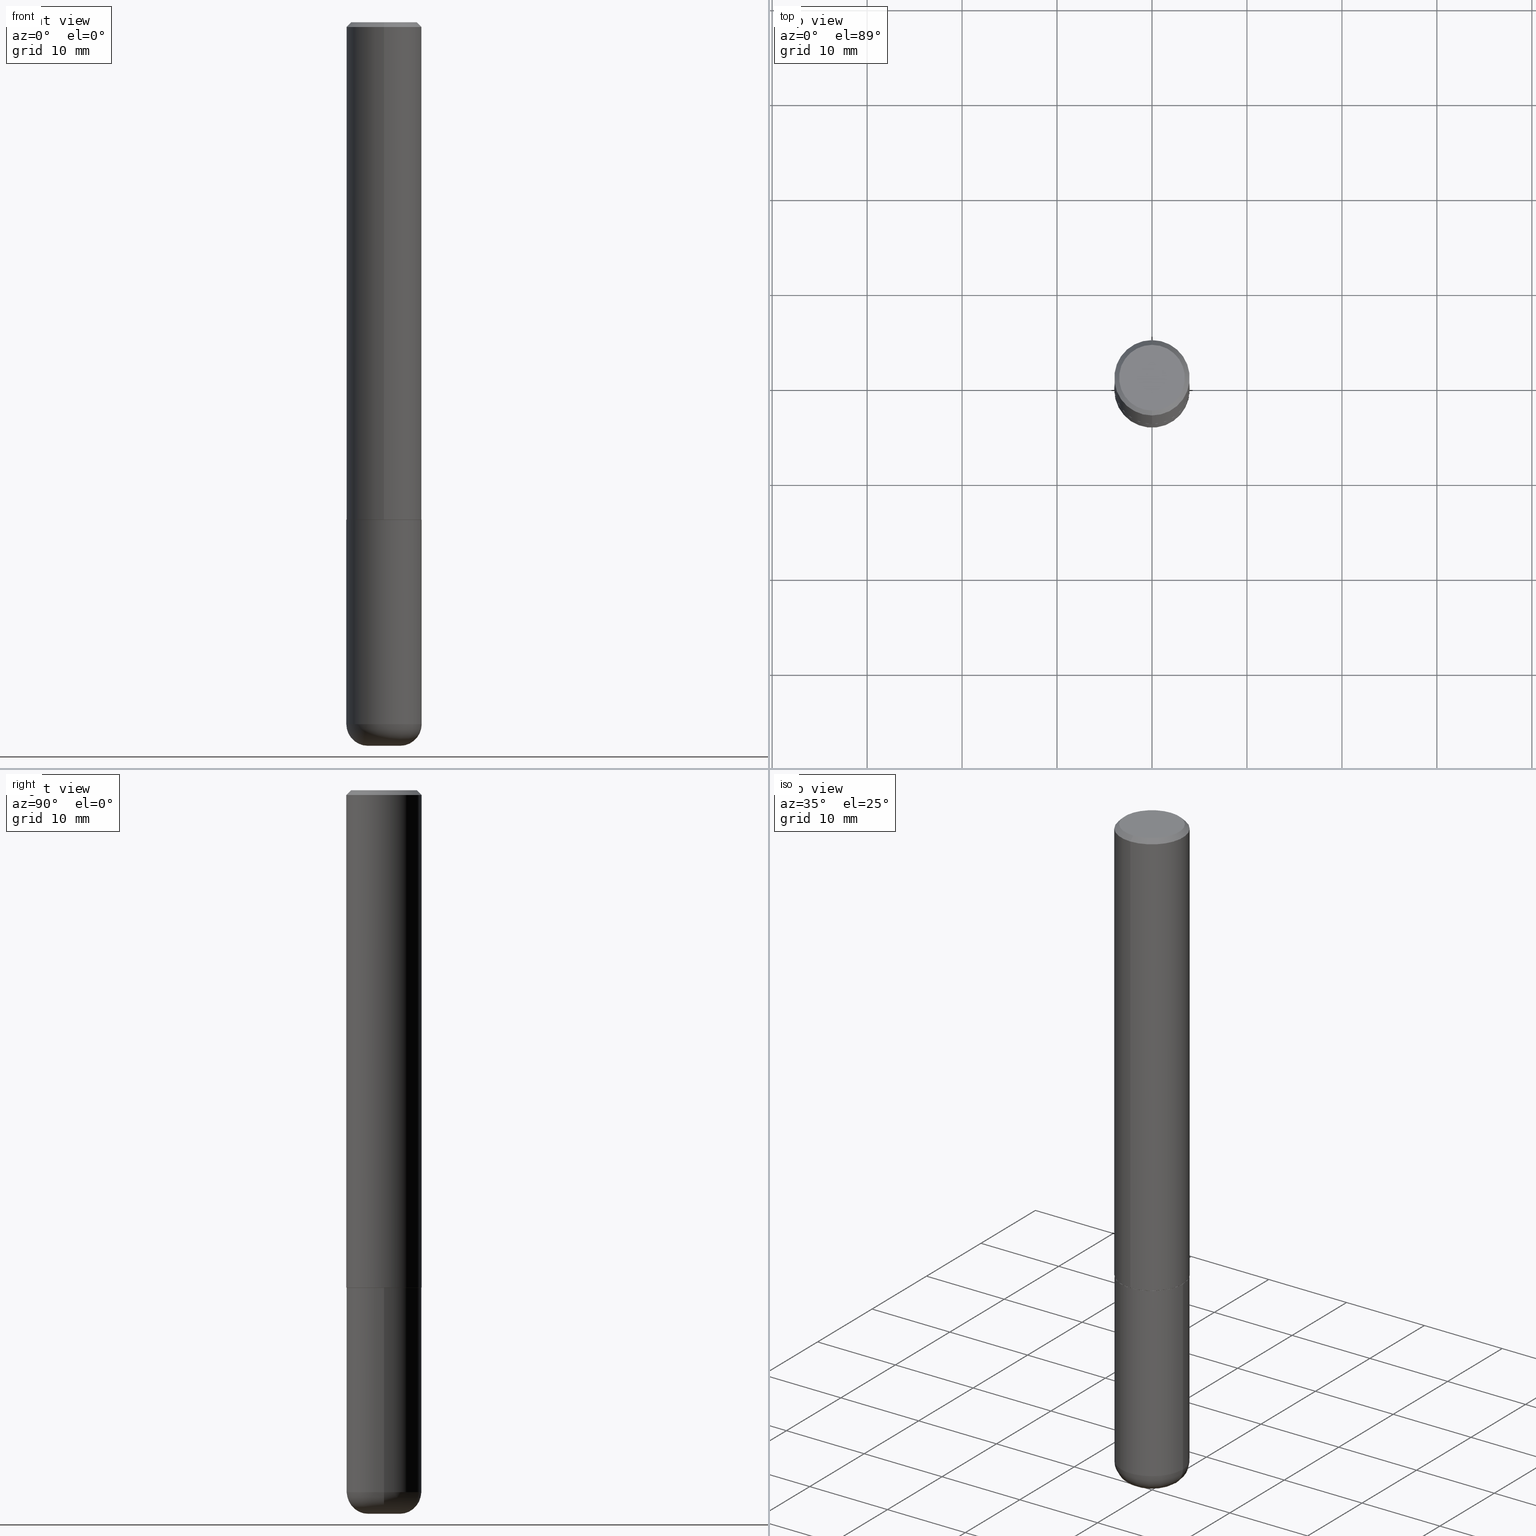
[diagram: canonical four-view strip — front | top / right | iso, engineering-drawing reading convention]
A machine part, canonical four-view strip (front | top / right | iso — engineering-drawing reading convention). The complete STEP part file that produces these views, byte-faithful:
ISO-10303-21;
HEADER;
FILE_DESCRIPTION (( 'STEP AP203' ),
    '1' );
FILE_NAME ('37468.STEP',
    '2024-03-02T02:04:07',
    ( '' ),
    ( '' ),
    'SwSTEP 2.0',
    'SolidWorks 2023',
    '' );
FILE_SCHEMA (( 'CONFIG_CONTROL_DESIGN' ));
ENDSEC;

DATA;
#1 = APPROVAL_STATUS ( 'not_yet_approved' ) ;
#2 = APPROVAL_PERSON_ORGANIZATION ( #260, #373, #105 ) ;
#3 = DATE_AND_TIME ( #283, #248 ) ;
#4 = ADVANCED_FACE ( 'NONE', ( #123 ), #250, .F. ) ;
#5 = DIRECTION ( 'NONE',  ( -2.445176063107630933E-29, 3.491900563592034843E-15, 1.000000000000000000 ) ) ;
#6 = CARTESIAN_POINT ( 'NONE',  ( 1.091087918388479568E-15, 0.1562499999999999445, -0.02000000000000057981 ) ) ;
#7 = ORIENTED_EDGE ( 'NONE', *, *, #19, .T. ) ;
#8 = DIRECTION ( 'NONE',  ( -2.445176063107630933E-29, 3.491900563592034843E-15, 1.000000000000000000 ) ) ;
#9 = CALENDAR_DATE ( 2024, 1, 3 ) ;
#10 = APPLICATION_CONTEXT ( 'configuration controlled 3d designs of mechanical parts and assemblies' ) ;
#11 = EDGE_CURVE ( 'NONE', #413, #173, #190, .T. ) ;
#12 = CONICAL_SURFACE ( 'NONE', #114, 0.1562500000000000000, 0.7853981633974469467 ) ;
#13 = DIRECTION ( 'NONE',  ( 2.445176063107630653E-29, -3.491900563592034843E-15, -1.000000000000000000 ) ) ;
#14 = CC_DESIGN_APPROVAL ( #373, ( #188 ) ) ;
#15 = CYLINDRICAL_SURFACE ( 'NONE', #308, 0.1562500000000001388 ) ;
#16 = DIRECTION ( 'NONE',  ( 1.000000000000000000, -6.982962677686269077E-15, 0.000000000000000000 ) ) ;
#17 = LINE ( 'NONE', #365, #217 ) ;
#18 = DIRECTION ( 'NONE',  ( 7.105427357601001859E-15, 1.000000000000000000, -3.491481338843145583E-15 ) ) ;
#19 = EDGE_CURVE ( 'NONE', #175, #277, #194, .T. ) ;
#20 = CARTESIAN_POINT ( 'NONE',  ( -1.071952812151801215E-15, -0.1562500000000000833, -0.01999999999999948694 ) ) ;
#21 = CARTESIAN_POINT ( 'NONE',  ( -0.06625000000000001721, -9.526848562748384337E-15, -2.999999999999999556 ) ) ;
#22 = CIRCLE ( 'NONE', #329, 0.1552499999999999991 ) ;
#23 = AXIS2_PLACEMENT_3D ( 'NONE', #251, #379, #53 ) ;
#24 = LENGTH_MEASURE_WITH_UNIT ( LENGTH_MEASURE( 0.02539999999999999897 ), #319 );
#25 = CONICAL_SURFACE ( 'NONE', #127, 0.1552499999999999991, 0.7853981633974141952 ) ;
#26 = CIRCLE ( 'NONE', #346, 0.1552499999999999991 ) ;
#27 = DIRECTION ( 'NONE',  ( -2.445176063107631214E-29, 3.491900563592034843E-15, 1.000000000000000000 ) ) ;
#28 = PERSON_AND_ORGANIZATION ( #135, #86 ) ;
#29 = PLANE ( 'NONE',  #330 ) ;
#30 = CARTESIAN_POINT ( 'NONE',  ( 5.043175630159489045E-29, -7.202044912408573467E-15, -2.062500000000000000 ) ) ;
#31 = CARTESIAN_POINT ( 'NONE',  ( 5.043175630159490166E-29, -7.202044912408575044E-15, -2.062500000000000444 ) ) ;
#32 = DIRECTION ( 'NONE',  ( -6.982962677686265922E-15, -1.000000000000000000, 3.491900563592035238E-15 ) ) ;
#33 = DIRECTION ( 'NONE',  ( -2.445176063107630933E-29, 3.491900563592034843E-15, 1.000000000000000000 ) ) ;
#34 = AXIS2_PLACEMENT_3D ( 'NONE', #254, #261, #355 ) ;
#35 = CIRCLE ( 'NONE', #204, 0.08999999999999964972 ) ;
#36 = DATE_AND_TIME ( #159, #94 ) ;
#37 = DIRECTION ( 'NONE',  ( -2.445468806185136597E-29, 3.491481338843145583E-15, 1.000000000000000000 ) ) ;
#38 = DIRECTION ( 'NONE',  ( -1.000000000000000000, 6.982962677686265922E-15, -4.876176775795935793E-29 ) ) ;
#39 = APPROVAL_DATE_TIME ( #316, #293 ) ;
#40 = CC_DESIGN_DATE_AND_TIME_ASSIGNMENT ( #3, #258, ( #237 ) ) ;
#41 = EDGE_CURVE ( 'NONE', #175, #366, #265, .T. ) ;
#42 = PERSON_AND_ORGANIZATION ( #135, #86 ) ;
#43 = CIRCLE ( 'NONE', #73, 0.1562500000000002776 ) ;
#44 = FACE_OUTER_BOUND ( 'NONE', #353, .T. ) ;
#45 = PERSON_AND_ORGANIZATION_ROLE ( 'creator' ) ;
#46 = CARTESIAN_POINT ( 'NONE',  ( 1.091087918388479568E-15, 0.1562499999999999445, -0.02000000000000057981 ) ) ;
#47 = ORIENTED_EDGE ( 'NONE', *, *, #63, .T. ) ;
#48 = PERSON_AND_ORGANIZATION ( #135, #86 ) ;
#49 = ORIENTED_EDGE ( 'NONE', *, *, #297, .T. ) ;
#50 = AXIS2_PLACEMENT_3D ( 'NONE', #212, #321, #361 ) ;
#51 = CARTESIAN_POINT ( 'NONE',  ( 0.1562499999999998335, -1.125129861442203147E-14, -2.910000000000000586 ) ) ;
#52 = VECTOR ( 'NONE', #27, 39.37007874015748143 ) ;
#53 = DIRECTION ( 'NONE',  ( -6.982962677686265922E-15, -1.000000000000000000, 3.519288880726909138E-15 ) ) ;
#54 = ORIENTED_EDGE ( 'NONE', *, *, #11, .F. ) ;
#55 = CARTESIAN_POINT ( 'NONE',  ( 5.043779412756844791E-29, -7.201180261363988578E-15, -2.062500000000000000 ) ) ;
#56 = ORIENTED_EDGE ( 'NONE', *, *, #255, .F. ) ;
#57 = MECHANICAL_CONTEXT ( 'NONE', #10, 'mechanical' ) ;
#58 = EDGE_CURVE ( 'NONE', #413, #274, #299, .T. ) ;
#59 = DIRECTION ( 'NONE',  ( -1.000000000000000000, 7.105427357600996337E-15, 0.000000000000000000 ) ) ;
#60 = LINE ( 'NONE', #268, #128 ) ;
#61 = ORIENTED_EDGE ( 'NONE', *, *, #58, .F. ) ;
#62 = DIRECTION ( 'NONE',  ( 2.445176063107630933E-29, -3.491900563592034843E-15, -1.000000000000000000 ) ) ;
#63 = EDGE_CURVE ( 'NONE', #366, #106, #17, .T. ) ;
#64 = ORIENTED_EDGE ( 'NONE', *, *, #138, .F. ) ;
#65 = ORIENTED_EDGE ( 'NONE', *, *, #63, .F. ) ;
#66 = DIRECTION ( 'NONE',  ( 2.438088387897960049E-29, -3.491481338843145188E-15, -1.000000000000000000 ) ) ;
#67 = AXIS2_PLACEMENT_3D ( 'NONE', #80, #200, #393 ) ;
#68 = AXIS2_PLACEMENT_3D ( 'NONE', #55, #171, #16 ) ;
#69 = APPLICATION_CONTEXT ( 'configuration controlled 3d designs of mechanical parts and assemblies' ) ;
#70 = COORDINATED_UNIVERSAL_TIME_OFFSET ( 5, 0, .BEHIND. ) ;
#71 = ADVANCED_FACE ( 'NONE', ( #300 ), #211, .T. ) ;
#72 = CARTESIAN_POINT ( 'NONE',  ( 1.110223024625157329E-15, 0.1562500000000001388, -5.456094630612559989E-16 ) ) ;
#73 = AXIS2_PLACEMENT_3D ( 'NONE', #192, #8, #234 ) ;
#74 = CC_DESIGN_PERSON_AND_ORGANIZATION_ASSIGNMENT ( #42, #231, ( #237 ) ) ;
#75 = DIRECTION ( 'NONE',  ( -4.937700262164378437E-15, -0.7071067811865208164, 0.7071067811865739960 ) ) ;
#76 = DIRECTION ( 'NONE',  ( -6.982962677686265922E-15, -1.000000000000000000, 3.519288880726909138E-15 ) ) ;
#77 = CIRCLE ( 'NONE', #67, 0.1562500000000000000 ) ;
#78 = AXIS2_PLACEMENT_3D ( 'NONE', #205, #13, #142 ) ;
#79 = EDGE_CURVE ( 'NONE', #274, #246, #77, .T. ) ;
#80 = CARTESIAN_POINT ( 'NONE',  ( 4.890352126215269679E-31, -6.983801127184080238E-17, -0.02000000000000003511 ) ) ;
#81 = DIRECTION ( 'NONE',  ( -6.982962677686265922E-15, -1.000000000000000000, 3.519288880726909138E-15 ) ) ;
#82 = DIRECTION ( 'NONE',  ( 1.000000000000000000, -6.982962677686262766E-15, 0.000000000000000000 ) ) ;
#83 = CARTESIAN_POINT ( 'NONE',  ( 5.043779412756844791E-29, -7.201180261363988578E-15, -2.062500000000000000 ) ) ;
#84 = DESIGN_CONTEXT ( 'detailed design', #69, 'design' ) ;
#85 = VECTOR ( 'NONE', #75, 39.37007874015748854 ) ;
#86 = ORGANIZATION ( 'UNSPECIFIED', 'UNSPECIFIED', '' ) ;
#87 = CARTESIAN_POINT ( 'NONE',  ( 1.021258291611617059E-15, 0.1362500000000001210, -5.653530947094876156E-16 ) ) ;
#88 = DIRECTION ( 'NONE',  ( -2.445468806185136597E-29, 3.491481338843145583E-15, 1.000000000000000000 ) ) ;
#89 = DIMENSIONAL_EXPONENTS ( 1.000000000000000000, 0.000000000000000000, 0.000000000000000000, 0.000000000000000000, 0.000000000000000000, 0.000000000000000000, 0.000000000000000000 ) ;
#90 = VERTEX_POINT ( 'NONE', #122 ) ;
#91 = DIRECTION ( 'NONE',  ( -6.982962677686265133E-15, -1.000000000000000000, 3.496765431890256920E-15 ) ) ;
#92 = VERTEX_POINT ( 'NONE', #403 ) ;
#93 = AXIS2_PLACEMENT_3D ( 'NONE', #418, #352, #405 ) ;
#94 = LOCAL_TIME ( 21, 4, 7.000000000000000000, #70 ) ;
#95 = EDGE_LOOP ( 'NONE', ( #257, #183 ) ) ;
#96 = ORIENTED_EDGE ( 'NONE', *, *, #41, .F. ) ;
#97 = FACE_OUTER_BOUND ( 'NONE', #152, .T. ) ;
#98 = DIRECTION ( 'NONE',  ( 6.982962677686265133E-15, 1.000000000000000000, -3.496765431890256920E-15 ) ) ;
#99 = CONICAL_SURFACE ( 'NONE', #132, 0.1562500000000000000, 0.7853981633974469467 ) ;
#100 = CONICAL_SURFACE ( 'NONE', #23, 0.1552499999999999991, 0.7853981633974141952 ) ;
#101 = EDGE_LOOP ( 'NONE', ( #347, #227, #117, #201 ) ) ;
#102 = DIRECTION ( 'NONE',  ( -2.445176063107630933E-29, 3.491900563592034843E-15, 1.000000000000000000 ) ) ;
#103 = CARTESIAN_POINT ( 'NONE',  ( 5.040730454096381281E-29, -7.198553011844980434E-15, -2.061500000000000110 ) ) ;
#104 = CIRCLE ( 'NONE', #218, 0.1362500000000001210 ) ;
#105 = APPROVAL_ROLE ( '' ) ;
#106 = VERTEX_POINT ( 'NONE', #146 ) ;
#107 = CARTESIAN_POINT ( 'NONE',  ( 1.103117597267605822E-15, 0.1552499999999928104, -2.062500000000000888 ) ) ;
#108 = APPROVAL_STATUS ( 'not_yet_approved' ) ;
#109 = PRODUCT_DEFINITION ( 'UNKNOWN', '', #188, #84 ) ;
#110 = DATE_AND_TIME ( #264, #380 ) ;
#111 = PERSON_AND_ORGANIZATION ( #135, #86 ) ;
#112 = CC_DESIGN_DATE_AND_TIME_ASSIGNMENT ( #143, #136, ( #109 ) ) ;
#113 = ADVANCED_FACE ( 'NONE', ( #97 ), #15, .T. ) ;
#114 = AXIS2_PLACEMENT_3D ( 'NONE', #253, #62, #184 ) ;
#115 = AXIS2_PLACEMENT_3D ( 'NONE', #103, #189, #312 ) ;
#116 = FACE_OUTER_BOUND ( 'NONE', #118, .T. ) ;
#117 = ORIENTED_EDGE ( 'NONE', *, *, #168, .F. ) ;
#118 = EDGE_LOOP ( 'NONE', ( #170, #302, #47, #154 ) ) ;
#119 = CARTESIAN_POINT ( 'NONE',  ( 4.890352126215269679E-31, -6.983801127184080238E-17, -0.02000000000000003511 ) ) ;
#120 = VECTOR ( 'NONE', #241, 39.37007874015748143 ) ;
#121 = AXIS2_PLACEMENT_3D ( 'NONE', #383, #66, #38 ) ;
#122 = CARTESIAN_POINT ( 'NONE',  ( -0.1562499999999998335, -9.049987671408398127E-15, -2.910000000000000586 ) ) ;
#123 = FACE_OUTER_BOUND ( 'NONE', #95, .T. ) ;
#124 = FACE_OUTER_BOUND ( 'NONE', #348, .T. ) ;
#125 = ADVANCED_FACE ( 'NONE', ( #315 ), #12, .T. ) ;
#126 = FACE_OUTER_BOUND ( 'NONE', #386, .T. ) ;
#127 = AXIS2_PLACEMENT_3D ( 'NONE', #191, #228, #76 ) ;
#128 = VECTOR ( 'NONE', #292, 39.37007874015748143 ) ;
#129 = EDGE_CURVE ( 'NONE', #400, #179, #22, .T. ) ;
#130 = DIRECTION ( 'NONE',  ( -2.445176063107630653E-29, 3.491900563592034843E-15, 1.000000000000000000 ) ) ;
#131 = EDGE_LOOP ( 'NONE', ( #412, #220 ) ) ;
#132 = AXIS2_PLACEMENT_3D ( 'NONE', #185, #181, #98 ) ;
#133 = AXIS2_PLACEMENT_3D ( 'NONE', #209, #88, #216 ) ;
#134 = CARTESIAN_POINT ( 'NONE',  ( -1.084104955710742475E-15, -0.1552500000000072156, -2.062500000000000000 ) ) ;
#135 = PERSON ( 'UNSPECIFIED', 'UNSPECIFIED', 'UNSPECIFIED', ('UNSPECIFIED'), ('UNSPECIFIED'), ('UNSPECIFIED') ) ;
#136 = DATE_TIME_ROLE ( 'creation_date' ) ;
#137 = APPLICATION_PROTOCOL_DEFINITION ( 'international standard', 'config_control_design', 1994, #69 ) ;
#138 = EDGE_CURVE ( 'NONE', #277, #175, #320, .T. ) ;
#139 = VECTOR ( 'NONE', #378, 39.37007874015748143 ) ;
#140 = CIRCLE ( 'NONE', #150, 0.1562500000000000000 ) ;
#141 = EDGE_LOOP ( 'NONE', ( #207, #162, #311, #340 ) ) ;
#142 = DIRECTION ( 'NONE',  ( 6.982962677686265922E-15, 1.000000000000000000, -3.491900563592034843E-15 ) ) ;
#143 = DATE_AND_TIME ( #9, #362 ) ;
#144 = UNCERTAINTY_MEASURE_WITH_UNIT (LENGTH_MEASURE( 1.000000000000000082E-05 ), #153, 'distance_accuracy_value', 'NONE');
#145 = DIRECTION ( 'NONE',  ( -6.982962677686265922E-15, -1.000000000000000000, 3.519288880726909138E-15 ) ) ;
#146 = CARTESIAN_POINT ( 'NONE',  ( 0.1562500000000000000, -8.292268179752468540E-15, -2.062500000000000000 ) ) ;
#147 = DIRECTION ( 'NONE',  ( 1.000000000000000000, -6.982962677686273810E-15, 0.000000000000000000 ) ) ;
#148 = FACE_OUTER_BOUND ( 'NONE', #363, .T. ) ;
#149 = ORIENTED_EDGE ( 'NONE', *, *, #324, .T. ) ;
#150 = AXIS2_PLACEMENT_3D ( 'NONE', #334, #394, #82 ) ;
#151 = EDGE_CURVE ( 'NONE', #173, #246, #327, .T. ) ;
#152 = EDGE_LOOP ( 'NONE', ( #280, #288, #149, #243 ) ) ;
#153 =( CONVERSION_BASED_UNIT ( 'INCH', #24 ) LENGTH_UNIT ( ) NAMED_UNIT ( #89 ) );
#154 = ORIENTED_EDGE ( 'NONE', *, *, #339, .F. ) ;
#155 = AXIS2_PLACEMENT_3D ( 'NONE', #235, #333, #272 ) ;
#156 = CC_DESIGN_PERSON_AND_ORGANIZATION_ASSIGNMENT ( #28, #45, ( #109 ) ) ;
#157 = CARTESIAN_POINT ( 'NONE',  ( -1.003347832174086672E-15, -0.1362500000000001210, 3.861898088693426789E-16 ) ) ;
#158 = DIRECTION ( 'NONE',  ( 1.000000000000000000, -6.982962677686253300E-15, 0.000000000000000000 ) ) ;
#159 = CALENDAR_DATE ( 2024, 1, 3 ) ;
#160 = CC_DESIGN_SECURITY_CLASSIFICATION ( #237, ( #188 ) ) ;
#161 = APPROVAL_DATE_TIME ( #36, #225 ) ;
#162 = ORIENTED_EDGE ( 'NONE', *, *, #138, .T. ) ;
#163 = SHAPE_DEFINITION_REPRESENTATION ( #214, #229 ) ;
#164 = COORDINATED_UNIVERSAL_TIME_OFFSET ( 5, 0, .BEHIND. ) ;
#165 = AXIS2_PLACEMENT_3D ( 'NONE', #244, #372, #364 ) ;
#166 = DIRECTION ( 'NONE',  ( -6.982962677686265922E-15, -1.000000000000000000, 3.491900563592035238E-15 ) ) ;
#167 = ADVANCED_FACE ( 'NONE', ( #126 ), #290, .T. ) ;
#168 = EDGE_CURVE ( 'NONE', #92, #182, #43, .T. ) ;
#169 = EDGE_CURVE ( 'NONE', #366, #90, #409, .T. ) ;
#170 = ORIENTED_EDGE ( 'NONE', *, *, #356, .F. ) ;
#171 = DIRECTION ( 'NONE',  ( -2.445468806185136597E-29, 3.491481338843145583E-15, 1.000000000000000000 ) ) ;
#172 = PERSON_AND_ORGANIZATION ( #135, #86 ) ;
#173 = VERTEX_POINT ( 'NONE', #87 ) ;
#174 = CARTESIAN_POINT ( 'NONE',  ( 7.336406418555408669E-29, -1.047444401652943478E-14, -2.999999999999999556 ) ) ;
#175 = VERTEX_POINT ( 'NONE', #287 ) ;
#176 = CYLINDRICAL_SURFACE ( 'NONE', #133, 0.1562500000000000000 ) ;
#177 = CLOSED_SHELL ( 'NONE', ( #402, #226, #278, #344, #71, #416 ) ) ;
#178 = PLANE ( 'NONE',  #78 ) ;
#179 = VERTEX_POINT ( 'NONE', #358 ) ;
#180 = CC_DESIGN_PERSON_AND_ORGANIZATION_ASSIGNMENT ( #296, #407, ( #310 ) ) ;
#181 = DIRECTION ( 'NONE',  ( 2.445176063107630933E-29, -3.491900563592034843E-15, -1.000000000000000000 ) ) ;
#182 = VERTEX_POINT ( 'NONE', #328 ) ;
#183 = ORIENTED_EDGE ( 'NONE', *, *, #351, .F. ) ;
#184 = DIRECTION ( 'NONE',  ( 6.982962677686265133E-15, 1.000000000000000000, -3.496765431890256920E-15 ) ) ;
#185 = CARTESIAN_POINT ( 'NONE',  ( 4.890352126215269679E-31, -6.983801127184080238E-17, -0.02000000000000003511 ) ) ;
#186 = ORIENTED_EDGE ( 'NONE', *, *, #324, .F. ) ;
#187 = EDGE_CURVE ( 'NONE', #400, #92, #395, .T. ) ;
#188 = PRODUCT_DEFINITION_FORMATION_WITH_SPECIFIED_SOURCE ( 'ANY', '', #310, .NOT_KNOWN. ) ;
#189 = DIRECTION ( 'NONE',  ( -2.445176063107630933E-29, 3.491900563592034843E-15, 1.000000000000000000 ) ) ;
#190 = CIRCLE ( 'NONE', #93, 0.1362500000000001210 ) ;
#191 = CARTESIAN_POINT ( 'NONE',  ( 5.043175630159490166E-29, -7.202044912408575044E-15, -2.062500000000000444 ) ) ;
#192 = CARTESIAN_POINT ( 'NONE',  ( 5.040730454096381281E-29, -7.198553011844980434E-15, -2.061500000000000110 ) ) ;
#193 = APPROVAL_DATE_TIME ( #110, #373 ) ;
#194 = CIRCLE ( 'NONE', #236, 0.06625000000000001721 ) ;
#195 = DIRECTION ( 'NONE',  ( -6.982962677686265922E-15, -1.000000000000000000, 3.491900563592034843E-15 ) ) ;
#196 = APPROVAL_PERSON_ORGANIZATION ( #387, #225, #382 ) ;
#197 = ORIENTED_EDGE ( 'NONE', *, *, #318, .T. ) ;
#198 = PERSON_AND_ORGANIZATION_ROLE ( 'creator' ) ;
#199 = DIRECTION ( 'NONE',  ( 5.024295867787889629E-15, 0.7071067811865257013, 0.7071067811865691111 ) ) ;
#200 = DIRECTION ( 'NONE',  ( -2.445176063107630933E-29, 3.491900563592034843E-15, 1.000000000000000000 ) ) ;
#201 = ORIENTED_EDGE ( 'NONE', *, *, #187, .F. ) ;
#202 = CARTESIAN_POINT ( 'NONE',  ( -1.084104955710742475E-15, -0.1552500000000072156, -2.062500000000000000 ) ) ;
#203 = DIRECTION ( 'NONE',  ( -2.445468806185136597E-29, 3.491481338843145583E-15, 1.000000000000000000 ) ) ;
#204 = AXIS2_PLACEMENT_3D ( 'NONE', #294, #18, #59 ) ;
#205 = CARTESIAN_POINT ( 'NONE',  ( 9.514286648347545493E-16, 0.1362500000000001210, -5.205622732494513937E-16 ) ) ;
#206 = ADVANCED_FACE ( 'NONE', ( #44 ), #99, .T. ) ;
#207 = ORIENTED_EDGE ( 'NONE', *, *, #342, .F. ) ;
#208 = DIRECTION ( 'NONE',  ( -6.982962677686266711E-15, -1.000000000000000000, 3.491481338843145583E-15 ) ) ;
#209 = CARTESIAN_POINT ( 'NONE',  ( 0.000000000000000000, 0.000000000000000000, 0.000000000000000000 ) ) ;
#210 = CARTESIAN_POINT ( 'NONE',  ( 2.461313932198454415E-28, 1.426682083175070482E-14, -2.999999999999999556 ) ) ;
#211 = TOROIDAL_SURFACE ( 'NONE', #34, 0.06625000000000001721, 0.08999999999999964972 ) ;
#212 = CARTESIAN_POINT ( 'NONE',  ( 7.116314225998749245E-29, -1.016021069603355467E-14, -2.910000000000000586 ) ) ;
#213 = CC_DESIGN_PERSON_AND_ORGANIZATION_ASSIGNMENT ( #172, #223, ( #188 ) ) ;
#214 = PRODUCT_DEFINITION_SHAPE ( 'NONE', 'NONE',  #109 ) ;
#215 = FACE_OUTER_BOUND ( 'NONE', #279, .T. ) ;
#216 = DIRECTION ( 'NONE',  ( 1.000000000000000000, -6.982962677686266711E-15, 4.876176775795936353E-29 ) ) ;
#217 = VECTOR ( 'NONE', #295, 39.37007874015748143 ) ;
#218 = AXIS2_PLACEMENT_3D ( 'NONE', #357, #389, #195 ) ;
#219 = COORDINATED_UNIVERSAL_TIME_OFFSET ( 5, 0, .BEHIND. ) ;
#220 = ORIENTED_EDGE ( 'NONE', *, *, #11, .T. ) ;
#221 = DIRECTION ( 'NONE',  ( -6.982962677686265922E-15, -1.000000000000000000, 3.491900563592034843E-15 ) ) ;
#222 = DIRECTION ( 'NONE',  ( 1.000000000000000000, -6.982962677686265133E-15, 4.883557194083112901E-29 ) ) ;
#223 = PERSON_AND_ORGANIZATION_ROLE ( 'design_supplier' ) ;
#224 = CARTESIAN_POINT ( 'NONE',  ( 7.116314225998749245E-29, -1.016021069603355467E-14, -2.910000000000000586 ) ) ;
#225 = APPROVAL ( #1, 'UNSPECIFIED' ) ;
#226 = ADVANCED_FACE ( 'NONE', ( #215 ), #269, .T. ) ;
#227 = ORIENTED_EDGE ( 'NONE', *, *, #230, .T. ) ;
#228 = DIRECTION ( 'NONE',  ( -2.445176063107630933E-29, 3.491900563592034843E-15, 1.000000000000000000 ) ) ;
#229 = ADVANCED_BREP_SHAPE_REPRESENTATION ( '37468', ( #233, #370, #155 ), #301 ) ;
#230 = EDGE_CURVE ( 'NONE', #179, #182, #350, .T. ) ;
#231 = PERSON_AND_ORGANIZATION_ROLE ( 'classification_officer' ) ;
#232 = FACE_OUTER_BOUND ( 'NONE', #101, .T. ) ;
#233 = MANIFOLD_SOLID_BREP ( 'Body-Move/Copy2[1]', #177 ) ;
#234 = DIRECTION ( 'NONE',  ( -6.982962677686265922E-15, -1.000000000000000000, 3.496765431890250609E-15 ) ) ;
#235 = CARTESIAN_POINT ( 'NONE',  ( 0.000000000000000000, 0.000000000000000000, 0.000000000000000000 ) ) ;
#236 = AXIS2_PLACEMENT_3D ( 'NONE', #401, #306, #158 ) ;
#237 = SECURITY_CLASSIFICATION ( '', '', #322 ) ;
#238 = ORIENTED_EDGE ( 'NONE', *, *, #151, .F. ) ;
#239 = FACE_OUTER_BOUND ( 'NONE', #131, .T. ) ;
#240 = DIRECTION ( 'NONE',  ( -2.445176063107630933E-29, 3.491900563592034843E-15, 1.000000000000000000 ) ) ;
#241 = DIRECTION ( 'NONE',  ( -4.851104656540957175E-15, -0.7071067811865490160, -0.7071067811865460184 ) ) ;
#242 = ORIENTED_EDGE ( 'NONE', *, *, #342, .T. ) ;
#243 = ORIENTED_EDGE ( 'NONE', *, *, #318, .F. ) ;
#244 = CARTESIAN_POINT ( 'NONE',  ( 0.000000000000000000, 0.000000000000000000, 0.000000000000000000 ) ) ;
#245 = ADVANCED_FACE ( 'NONE', ( #232 ), #25, .T. ) ;
#246 = VERTEX_POINT ( 'NONE', #46 ) ;
#247 = AXIS2_PLACEMENT_3D ( 'NONE', #335, #208, #147 ) ;
#248 = LOCAL_TIME ( 21, 4, 7.000000000000000000, #164 ) ;
#249 = ORIENTED_EDGE ( 'NONE', *, *, #411, .T. ) ;
#250 = PLANE ( 'NONE',  #392 ) ;
#251 = CARTESIAN_POINT ( 'NONE',  ( 5.043175630159490166E-29, -7.202044912408575044E-15, -2.062500000000000444 ) ) ;
#252 = CIRCLE ( 'NONE', #266, 0.1562500000000000000 ) ;
#253 = CARTESIAN_POINT ( 'NONE',  ( 4.890352126215269679E-31, -6.983801127184080238E-17, -0.02000000000000003511 ) ) ;
#254 = CARTESIAN_POINT ( 'NONE',  ( 7.116314225998749245E-29, -1.016021069603355467E-14, -2.910000000000000586 ) ) ;
#255 = EDGE_CURVE ( 'NONE', #173, #413, #104, .T. ) ;
#256 = ORIENTED_EDGE ( 'NONE', *, *, #286, .F. ) ;
#257 = ORIENTED_EDGE ( 'NONE', *, *, #129, .F. ) ;
#258 = DATE_TIME_ROLE ( 'classification_date' ) ;
#259 = ORIENTED_EDGE ( 'NONE', *, *, #351, .T. ) ;
#260 = PERSON_AND_ORGANIZATION ( #135, #86 ) ;
#261 = DIRECTION ( 'NONE',  ( -2.445468806185136597E-29, 3.491481338843145583E-15, 1.000000000000000000 ) ) ;
#262 = DIRECTION ( 'NONE',  ( 1.000000000000000000, -6.982962677686253300E-15, 0.000000000000000000 ) ) ;
#263 = CARTESIAN_POINT ( 'NONE',  ( 0.000000000000000000, 0.000000000000000000, 0.000000000000000000 ) ) ;
#264 = CALENDAR_DATE ( 2024, 1, 3 ) ;
#265 = CIRCLE ( 'NONE', #247, 0.08999999999999964972 ) ;
#266 = AXIS2_PLACEMENT_3D ( 'NONE', #83, #203, #332 ) ;
#267 = ORIENTED_EDGE ( 'NONE', *, *, #356, .T. ) ;
#268 = CARTESIAN_POINT ( 'NONE',  ( -0.1562500000000000000, 1.110223024625156540E-15, -7.685836078523291160E-30 ) ) ;
#269 = TOROIDAL_SURFACE ( 'NONE', #298, 0.06625000000000001721, 0.08999999999999964972 ) ;
#270 = AXIS2_PLACEMENT_3D ( 'NONE', #263, #325, #166 ) ;
#271 = ORIENTED_EDGE ( 'NONE', *, *, #411, .F. ) ;
#272 = DIRECTION ( 'NONE',  ( 1.000000000000000000, 0.000000000000000000, 0.000000000000000000 ) ) ;
#273 = CARTESIAN_POINT ( 'NONE',  ( 0.000000000000000000, 0.000000000000000000, 0.000000000000000000 ) ) ;
#274 = VERTEX_POINT ( 'NONE', #285 ) ;
#275 = ORIENTED_EDGE ( 'NONE', *, *, #58, .T. ) ;
#276 = LINE ( 'NONE', #406, #309 ) ;
#277 = VERTEX_POINT ( 'NONE', #21 ) ;
#278 = ADVANCED_FACE ( 'NONE', ( #148 ), #368, .F. ) ;
#279 = EDGE_LOOP ( 'NONE', ( #7, #242, #384, #96 ) ) ;
#280 = ORIENTED_EDGE ( 'NONE', *, *, #297, .F. ) ;
#281 = DIRECTION ( 'NONE',  ( -1.000000000000000000, 6.982962677686265922E-15, -4.876176775795935793E-29 ) ) ;
#282 = CC_DESIGN_PERSON_AND_ORGANIZATION_ASSIGNMENT ( #48, #198, ( #188 ) ) ;
#283 = CALENDAR_DATE ( 2024, 1, 3 ) ;
#284 = AXIS2_PLACEMENT_3D ( 'NONE', #119, #240, #91 ) ;
#285 = CARTESIAN_POINT ( 'NONE',  ( -1.071952812151801215E-15, -0.1562500000000000833, -0.01999999999999948694 ) ) ;
#286 = EDGE_CURVE ( 'NONE', #182, #92, #375, .T. ) ;
#287 = CARTESIAN_POINT ( 'NONE',  ( 0.06625000000000001721, -1.093706529392614979E-14, -2.999999999999999556 ) ) ;
#288 = ORIENTED_EDGE ( 'NONE', *, *, #286, .T. ) ;
#289 = ORIENTED_EDGE ( 'NONE', *, *, #339, .T. ) ;
#290 = CYLINDRICAL_SURFACE ( 'NONE', #270, 0.1562500000000001388 ) ;
#291 = COORDINATED_UNIVERSAL_TIME_OFFSET ( 5, 0, .BEHIND. ) ;
#292 = DIRECTION ( 'NONE',  ( -2.445468806185136877E-29, 3.491481338843145188E-15, 1.000000000000000000 ) ) ;
#293 = APPROVAL ( #305, 'UNSPECIFIED' ) ;
#294 = CARTESIAN_POINT ( 'NONE',  ( -0.06625000000000001721, -9.689476133592487284E-15, -2.910000000000000586 ) ) ;
#295 = DIRECTION ( 'NONE',  ( -2.445468806185136877E-29, 3.491481338843145188E-15, 1.000000000000000000 ) ) ;
#296 = PERSON_AND_ORGANIZATION ( #135, #86 ) ;
#297 = EDGE_CURVE ( 'NONE', #182, #246, #345, .T. ) ;
#298 = AXIS2_PLACEMENT_3D ( 'NONE', #224, #388, #222 ) ;
#299 = LINE ( 'NONE', #20, #120 ) ;
#300 = FACE_OUTER_BOUND ( 'NONE', #141, .T. ) ;
#301 =( GEOMETRIC_REPRESENTATION_CONTEXT ( 3 ) GLOBAL_UNCERTAINTY_ASSIGNED_CONTEXT ( ( #144 ) ) GLOBAL_UNIT_ASSIGNED_CONTEXT ( ( #153, #369, #349 ) ) REPRESENTATION_CONTEXT ( 'NONE', 'WORKASPACE' ) );
#302 = ORIENTED_EDGE ( 'NONE', *, *, #390, .T. ) ;
#303 = ORIENTED_EDGE ( 'NONE', *, *, #168, .T. ) ;
#304 = VERTEX_POINT ( 'NONE', #414 ) ;
#305 = APPROVAL_STATUS ( 'not_yet_approved' ) ;
#306 = DIRECTION ( 'NONE',  ( -2.445468806185136597E-29, 3.491481338843145583E-15, 1.000000000000000000 ) ) ;
#307 = ORIENTED_EDGE ( 'NONE', *, *, #79, .F. ) ;
#308 = AXIS2_PLACEMENT_3D ( 'NONE', #273, #5, #32 ) ;
#309 = VECTOR ( 'NONE', #397, 39.37007874015748143 ) ;
#310 = PRODUCT ( '37468', '37468', '', ( #57 ) ) ;
#311 = ORIENTED_EDGE ( 'NONE', *, *, #41, .T. ) ;
#312 = DIRECTION ( 'NONE',  ( -6.982962677686265922E-15, -1.000000000000000000, 3.496765431890250609E-15 ) ) ;
#313 = CALENDAR_DATE ( 2024, 1, 3 ) ;
#314 = FACE_OUTER_BOUND ( 'NONE', #381, .T. ) ;
#315 = FACE_OUTER_BOUND ( 'NONE', #367, .T. ) ;
#316 = DATE_AND_TIME ( #313, #336 ) ;
#317 = ADVANCED_FACE ( 'NONE', ( #124 ), #100, .T. ) ;
#318 = EDGE_CURVE ( 'NONE', #246, #274, #385, .T. ) ;
#319 =( LENGTH_UNIT ( ) NAMED_UNIT ( * ) SI_UNIT ( $, .METRE. ) );
#320 = CIRCLE ( 'NONE', #398, 0.06625000000000001721 ) ;
#321 = DIRECTION ( 'NONE',  ( -2.445468806185136597E-29, 3.491481338843145583E-15, 1.000000000000000000 ) ) ;
#322 = SECURITY_CLASSIFICATION_LEVEL ( 'unclassified' ) ;
#323 = VECTOR ( 'NONE', #199, 39.37007874015748854 ) ;
#324 = EDGE_CURVE ( 'NONE', #92, #274, #276, .T. ) ;
#325 = DIRECTION ( 'NONE',  ( -2.445176063107630933E-29, 3.491900563592034843E-15, 1.000000000000000000 ) ) ;
#326 = CIRCLE ( 'NONE', #68, 0.1562500000000000000 ) ;
#327 = LINE ( 'NONE', #6, #139 ) ;
#328 = CARTESIAN_POINT ( 'NONE',  ( 1.110223024625183362E-15, 0.1562499999999930611, -2.061500000000000554 ) ) ;
#329 = AXIS2_PLACEMENT_3D ( 'NONE', #31, #33, #81 ) ;
#330 = AXIS2_PLACEMENT_3D ( 'NONE', #210, #371, #281 ) ;
#331 = FACE_OUTER_BOUND ( 'NONE', #415, .T. ) ;
#332 = DIRECTION ( 'NONE',  ( 1.000000000000000000, -6.982962677686269077E-15, 0.000000000000000000 ) ) ;
#333 = DIRECTION ( 'NONE',  ( 0.000000000000000000, 0.000000000000000000, 1.000000000000000000 ) ) ;
#334 = CARTESIAN_POINT ( 'NONE',  ( 7.116314225998749245E-29, -1.016021069603355467E-14, -2.910000000000000586 ) ) ;
#335 = CARTESIAN_POINT ( 'NONE',  ( 0.06625000000000001721, -1.062283197343026968E-14, -2.910000000000000586 ) ) ;
#336 = LOCAL_TIME ( 21, 4, 7.000000000000000000, #219 ) ;
#337 = ORIENTED_EDGE ( 'NONE', *, *, #19, .F. ) ;
#338 = ORIENTED_EDGE ( 'NONE', *, *, #169, .T. ) ;
#339 = EDGE_CURVE ( 'NONE', #304, #106, #252, .T. ) ;
#340 = ORIENTED_EDGE ( 'NONE', *, *, #390, .F. ) ;
#341 = CARTESIAN_POINT ( 'NONE',  ( 5.043175630159490166E-29, -7.202044912408575044E-15, -2.062500000000000444 ) ) ;
#342 = EDGE_CURVE ( 'NONE', #277, #90, #35, .T. ) ;
#343 = ORIENTED_EDGE ( 'NONE', *, *, #79, .T. ) ;
#344 = ADVANCED_FACE ( 'NONE', ( #116 ), #176, .T. ) ;
#345 = LINE ( 'NONE', #72, #52 ) ;
#346 = AXIS2_PLACEMENT_3D ( 'NONE', #341, #102, #145 ) ;
#347 = ORIENTED_EDGE ( 'NONE', *, *, #129, .T. ) ;
#348 = EDGE_LOOP ( 'NONE', ( #374, #259, #359, #256 ) ) ;
#349 =( NAMED_UNIT ( * ) SI_UNIT ( $, .STERADIAN. ) SOLID_ANGLE_UNIT ( ) );
#350 = LINE ( 'NONE', #107, #323 ) ;
#351 = EDGE_CURVE ( 'NONE', #179, #400, #26, .T. ) ;
#352 = DIRECTION ( 'NONE',  ( -2.445176063107630933E-29, 3.491900563592034843E-15, 1.000000000000000000 ) ) ;
#353 = EDGE_LOOP ( 'NONE', ( #54, #275, #343, #238 ) ) ;
#354 = CC_DESIGN_APPROVAL ( #225, ( #237 ) ) ;
#355 = DIRECTION ( 'NONE',  ( 1.000000000000000000, -6.982962677686265133E-15, 4.883557194083112901E-29 ) ) ;
#356 = EDGE_CURVE ( 'NONE', #90, #304, #60, .T. ) ;
#357 = CARTESIAN_POINT ( 'NONE',  ( 2.190428889620163364E-45, -3.128101894001013777E-31, -8.958164292007245599E-17 ) ) ;
#358 = CARTESIAN_POINT ( 'NONE',  ( 1.106670310946407312E-15, 0.1552499999999928104, -2.062500000000000888 ) ) ;
#359 = ORIENTED_EDGE ( 'NONE', *, *, #187, .T. ) ;
#360 = CLOSED_SHELL ( 'NONE', ( #245, #167, #206, #125, #113, #317, #4, #376 ) ) ;
#361 = DIRECTION ( 'NONE',  ( 1.000000000000000000, -6.982962677686262766E-15, 0.000000000000000000 ) ) ;
#362 = LOCAL_TIME ( 21, 4, 7.000000000000000000, #291 ) ;
#363 = EDGE_LOOP ( 'NONE', ( #249, #289 ) ) ;
#364 = DIRECTION ( 'NONE',  ( 1.000000000000000000, -6.982962677686266711E-15, 4.876176775795936353E-29 ) ) ;
#365 = CARTESIAN_POINT ( 'NONE',  ( 0.1562500000000000000, -1.091087918388479174E-15, 7.619026212181150377E-30 ) ) ;
#366 = VERTEX_POINT ( 'NONE', #51 ) ;
#367 = EDGE_LOOP ( 'NONE', ( #61, #56, #417, #197 ) ) ;
#368 = PLANE ( 'NONE',  #121 ) ;
#369 =( NAMED_UNIT ( * ) PLANE_ANGLE_UNIT ( ) SI_UNIT ( $, .RADIAN. ) );
#370 = MANIFOLD_SOLID_BREP ( 'Body-Move/Copy2[2]', #360 ) ;
#371 = DIRECTION ( 'NONE',  ( 2.438088387897960049E-29, -3.491481338843145188E-15, -1.000000000000000000 ) ) ;
#372 = DIRECTION ( 'NONE',  ( -2.445468806185136597E-29, 3.491481338843145583E-15, 1.000000000000000000 ) ) ;
#373 = APPROVAL ( #108, 'UNSPECIFIED' ) ;
#374 = ORIENTED_EDGE ( 'NONE', *, *, #230, .F. ) ;
#375 = CIRCLE ( 'NONE', #115, 0.1562500000000002776 ) ;
#376 = ADVANCED_FACE ( 'NONE', ( #239 ), #178, .F. ) ;
#377 = PRODUCT_RELATED_PRODUCT_CATEGORY ( 'detail', '', ( #310 ) ) ;
#378 = DIRECTION ( 'NONE',  ( 4.937700262164540942E-15, 0.7071067811865441310, -0.7071067811865509034 ) ) ;
#379 = DIRECTION ( 'NONE',  ( -2.445176063107630933E-29, 3.491900563592034843E-15, 1.000000000000000000 ) ) ;
#380 = LOCAL_TIME ( 21, 4, 7.000000000000000000, #391 ) ;
#381 = EDGE_LOOP ( 'NONE', ( #337, #64 ) ) ;
#382 = APPROVAL_ROLE ( '' ) ;
#383 = CARTESIAN_POINT ( 'NONE',  ( 5.043779412756844791E-29, -7.201180261363988578E-15, -2.062500000000000000 ) ) ;
#384 = ORIENTED_EDGE ( 'NONE', *, *, #169, .F. ) ;
#385 = CIRCLE ( 'NONE', #284, 0.1562500000000000000 ) ;
#386 = EDGE_LOOP ( 'NONE', ( #303, #49, #307, #186 ) ) ;
#387 = PERSON_AND_ORGANIZATION ( #135, #86 ) ;
#388 = DIRECTION ( 'NONE',  ( -2.445468806185136597E-29, 3.491481338843145583E-15, 1.000000000000000000 ) ) ;
#389 = DIRECTION ( 'NONE',  ( -2.445176063107630933E-29, 3.491900563592034843E-15, 1.000000000000000000 ) ) ;
#390 = EDGE_CURVE ( 'NONE', #90, #366, #140, .T. ) ;
#391 = COORDINATED_UNIVERSAL_TIME_OFFSET ( 5, 0, .BEHIND. ) ;
#392 = AXIS2_PLACEMENT_3D ( 'NONE', #30, #130, #221 ) ;
#393 = DIRECTION ( 'NONE',  ( -6.982962677686265133E-15, -1.000000000000000000, 3.496765431890256920E-15 ) ) ;
#394 = DIRECTION ( 'NONE',  ( -2.445468806185136597E-29, 3.491481338843145583E-15, 1.000000000000000000 ) ) ;
#395 = LINE ( 'NONE', #134, #85 ) ;
#396 = CYLINDRICAL_SURFACE ( 'NONE', #165, 0.1562500000000000000 ) ;
#397 = DIRECTION ( 'NONE',  ( -2.445176063107631214E-29, 3.491900563592034843E-15, 1.000000000000000000 ) ) ;
#398 = AXIS2_PLACEMENT_3D ( 'NONE', #174, #37, #262 ) ;
#399 = CC_DESIGN_APPROVAL ( #293, ( #109 ) ) ;
#400 = VERTEX_POINT ( 'NONE', #202 ) ;
#401 = CARTESIAN_POINT ( 'NONE',  ( 7.336406418555408669E-29, -1.047444401652943478E-14, -2.999999999999999556 ) ) ;
#402 = ADVANCED_FACE ( 'NONE', ( #331 ), #396, .T. ) ;
#403 = CARTESIAN_POINT ( 'NONE',  ( -1.091087918388430659E-15, -0.1562500000000074940, -2.061499999999999666 ) ) ;
#404 = APPLICATION_PROTOCOL_DEFINITION ( 'international standard', 'config_control_design', 1994, #10 ) ;
#405 = DIRECTION ( 'NONE',  ( -6.982962677686265922E-15, -1.000000000000000000, 3.491900563592034843E-15 ) ) ;
#406 = CARTESIAN_POINT ( 'NONE',  ( -1.091087918388479962E-15, -0.1562500000000001388, 5.456094630612559989E-16 ) ) ;
#407 = PERSON_AND_ORGANIZATION_ROLE ( 'design_owner' ) ;
#408 = APPROVAL_ROLE ( '' ) ;
#409 = CIRCLE ( 'NONE', #50, 0.1562500000000000000 ) ;
#410 = APPROVAL_PERSON_ORGANIZATION ( #111, #293, #408 ) ;
#411 = EDGE_CURVE ( 'NONE', #106, #304, #326, .T. ) ;
#412 = ORIENTED_EDGE ( 'NONE', *, *, #255, .T. ) ;
#413 = VERTEX_POINT ( 'NONE', #157 ) ;
#414 = CARTESIAN_POINT ( 'NONE',  ( -0.1562500000000000000, -7.570472454073614293E-15, -2.062500000000000000 ) ) ;
#415 = EDGE_LOOP ( 'NONE', ( #338, #267, #271, #65 ) ) ;
#416 = ADVANCED_FACE ( 'NONE', ( #314 ), #29, .T. ) ;
#417 = ORIENTED_EDGE ( 'NONE', *, *, #151, .T. ) ;
#418 = CARTESIAN_POINT ( 'NONE',  ( 2.190428889620163364E-45, -3.128101894001013777E-31, -8.958164292007245599E-17 ) ) ;
ENDSEC;
END-ISO-10303-21;
